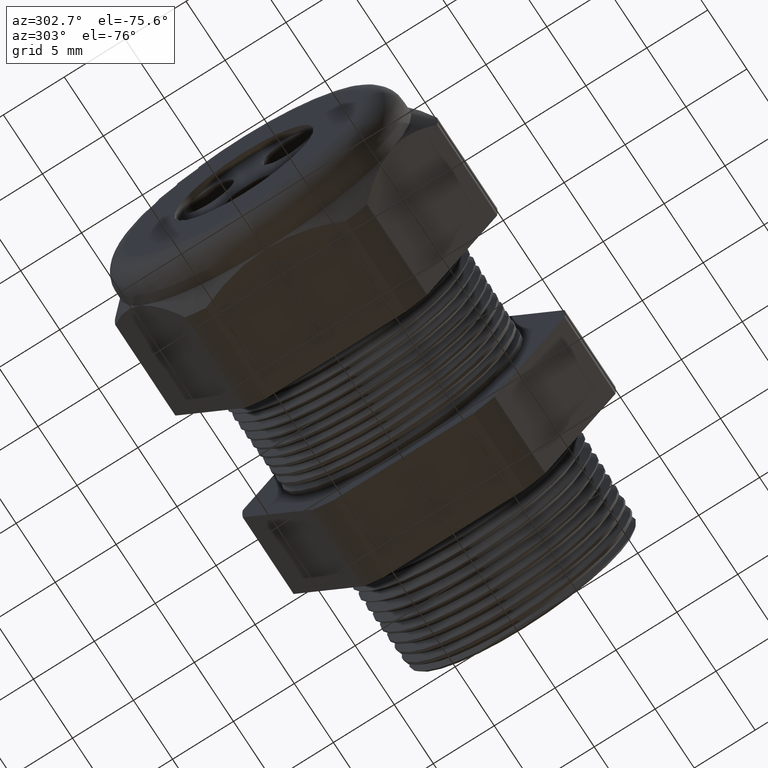
[diagram: clean part render]
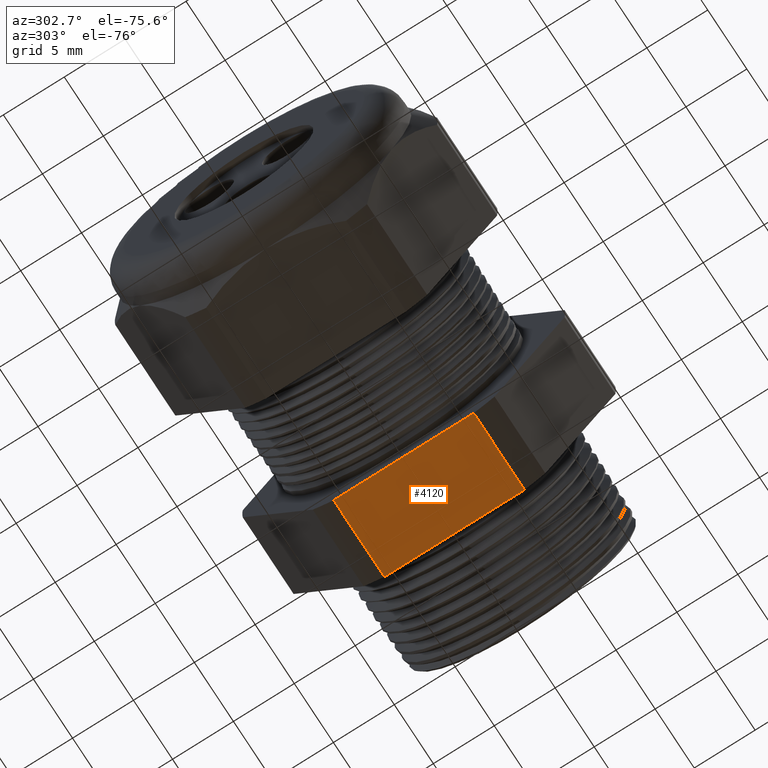
[diagram: same view with one face highlighted and labeled with its STEP entity id]
A machine part, auxiliary view. The second image highlights one B-rep face of the part: STEP entity #4120.
In plain terms, the highlighted planar face has unit normal (0, 0, -1).
Its self-contained STEP definition (entity closure, byte-faithful):
#166 = VERTEX_POINT ( 'NONE', #773 ) ;
#773 = CARTESIAN_POINT ( 'NONE',  ( -0.3100000000000000000, -0.2264307620443830900, -0.4700000000000000300 ) ) ;
#2123 = DIRECTION ( 'NONE',  ( -1.000000000000000000, 0.0000000000000000000, 0.0000000000000000000 ) ) ;
#2124 = VECTOR ( 'NONE', #2123, 39.37007874015748100 ) ;
#2125 = CARTESIAN_POINT ( 'NONE',  ( 0.03999999999999984800, 0.2264307620443831200, -0.4700000000000000300 ) ) ;
#2126 = LINE ( 'NONE', #2125, #2124 ) ;
#2127 = DIRECTION ( 'NONE',  ( -1.000000000000000000, 0.0000000000000000000, 0.0000000000000000000 ) ) ;
#2128 = DIRECTION ( 'NONE',  ( 0.0000000000000000000, 0.0000000000000000000, -1.000000000000000000 ) ) ;
#2129 = CARTESIAN_POINT ( 'NONE',  ( 0.03999999999999984800, 0.2264307620443830900, -0.4700000000000000300 ) ) ;
#2130 = AXIS2_PLACEMENT_3D ( 'NONE', #2129, #2128, #2127 ) ;
#2131 = PLANE ( 'NONE',  #2130 ) ;
#2132 = FACE_OUTER_BOUND ( 'NONE', #4121, .T. ) ;
#2133 = DIRECTION ( 'NONE',  ( -1.000000000000000000, 0.0000000000000000000, 0.0000000000000000000 ) ) ;
#2134 = VECTOR ( 'NONE', #2133, 39.37007874015748100 ) ;
#2135 = CARTESIAN_POINT ( 'NONE',  ( 0.03999999999999984800, -0.2264307620443830900, -0.4700000000000000300 ) ) ;
#2140 = LINE ( 'NONE', #2135, #2134 ) ;
#2585 = DIRECTION ( 'NONE',  ( 0.0000000000000000000, 1.000000000000000000, 0.0000000000000000000 ) ) ;
#2586 = VECTOR ( 'NONE', #2585, 39.37007874015748100 ) ;
#2587 = CARTESIAN_POINT ( 'NONE',  ( -0.3100000000000000000, 0.9399999999999999500, -0.4700000000000000300 ) ) ;
#2588 = LINE ( 'NONE', #2587, #2586 ) ;
#2594 = CARTESIAN_POINT ( 'NONE',  ( -0.3100000000000000000, 0.2264307620443831200, -0.4700000000000000300 ) ) ;
#2743 = DIRECTION ( 'NONE',  ( 0.0000000000000000000, -1.000000000000000000, 0.0000000000000000000 ) ) ;
#2744 = VECTOR ( 'NONE', #2743, 39.37007874015748100 ) ;
#2745 = CARTESIAN_POINT ( 'NONE',  ( -0.5659055118110235500, 0.9399999999999999500, -0.4700000000000000300 ) ) ;
#2746 = LINE ( 'NONE', #2745, #2744 ) ;
#2747 = CARTESIAN_POINT ( 'NONE',  ( -0.5659055118110235500, -0.2264307620443830900, -0.4700000000000000300 ) ) ;
#2793 = CARTESIAN_POINT ( 'NONE',  ( -0.5659055118110235500, 0.2264307620443831200, -0.4700000000000000300 ) ) ;
#4118 = EDGE_CURVE ( 'NONE', #166, #4510, #2140, .T. ) ;
#4120 = ADVANCED_FACE ( 'NONE', ( #2132 ), #2131, .T. ) ;
#4121 = EDGE_LOOP ( 'NONE', ( #4122, #4123, #4124, #4176 ) ) ;
#4122 = ORIENTED_EDGE ( 'NONE', *, *, #4118, .T. ) ;
#4123 = ORIENTED_EDGE ( 'NONE', *, *, #4511, .F. ) ;
#4124 = ORIENTED_EDGE ( 'NONE', *, *, #4125, .F. ) ;
#4125 = EDGE_CURVE ( 'NONE', #4418, #4518, #2126, .T. ) ;
#4176 = ORIENTED_EDGE ( 'NONE', *, *, #4422, .F. ) ;
#4418 = VERTEX_POINT ( 'NONE', #2594 ) ;
#4422 = EDGE_CURVE ( 'NONE', #166, #4418, #2588, .T. ) ;
#4510 = VERTEX_POINT ( 'NONE', #2747 ) ;
#4511 = EDGE_CURVE ( 'NONE', #4518, #4510, #2746, .T. ) ;
#4518 = VERTEX_POINT ( 'NONE', #2793 ) ;